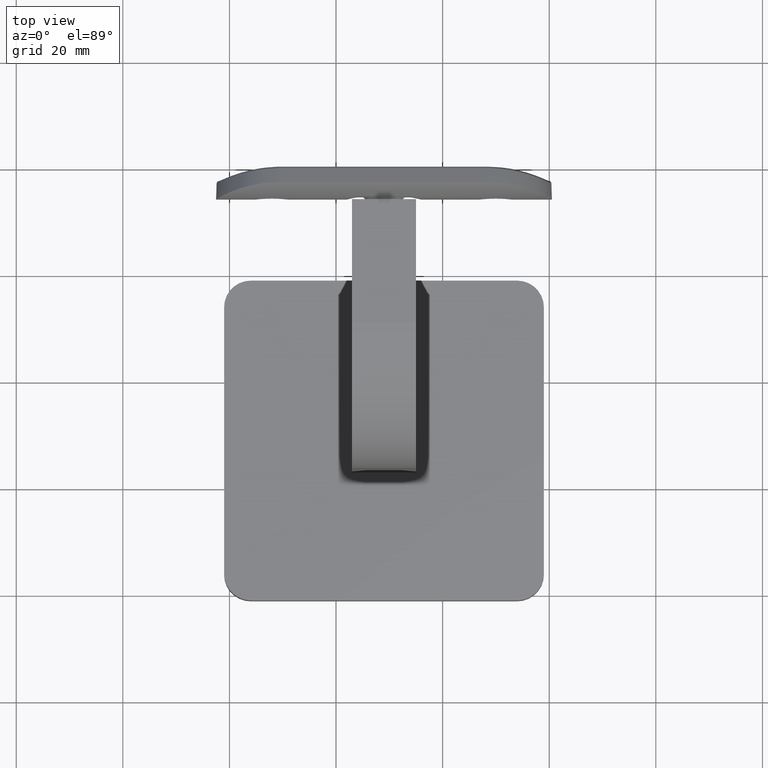
[diagram: clean part render]
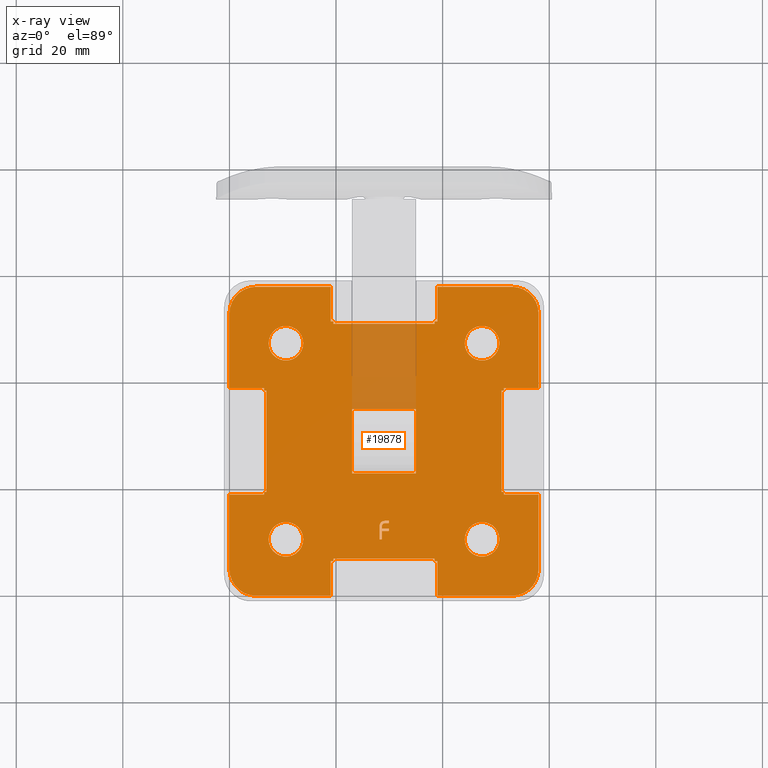
[diagram: x-ray — body ghosted, one internal face saturated and labeled with its STEP entity id]
A machine part, top view, then the same camera in x-ray: the body is ghosted and one INTERNAL B-rep face — a face not visible from any outside direction — is saturated and labeled: STEP entity #19878.
In plain terms, the highlighted planar face has unit normal (0, 0, -1).
Its self-contained STEP definition (entity closure, byte-faithful):
#5 = ORIENTED_EDGE ( 'NONE', *, *, #4722, .F. ) ;
#47 = DIRECTION ( 'NONE',  ( 1.000000000000000000, -0.000000000000000000, -0.000000000000000000 ) ) ;
#175 = VERTEX_POINT ( 'NONE', #19635 ) ;
#183 = CARTESIAN_POINT ( 'NONE',  ( 28.79063944848217460, 13.47055352233458336, 2.000000000000000888 ) ) ;
#207 = CARTESIAN_POINT ( 'NONE',  ( 50.65000000000001279, 10.59999999999999964, 2.000000000000000000 ) ) ;
#261 = VERTEX_POINT ( 'NONE', #18134 ) ;
#274 = DIRECTION ( 'NONE',  ( 0.000000000000000000, 0.000000000000000000, 1.000000000000000000 ) ) ;
#301 = LINE ( 'NONE', #7086, #7984 ) ;
#355 = CARTESIAN_POINT ( 'NONE',  ( 29.89802631578947967, 14.09999999999999964, 2.000000000000000000 ) ) ;
#371 = AXIS2_PLACEMENT_3D ( 'NONE', #10263, #11920, #18279 ) ;
#479 = ORIENTED_EDGE ( 'NONE', *, *, #1676, .T. ) ;
#508 = ORIENTED_EDGE ( 'NONE', *, *, #16146, .F. ) ;
#532 = DIRECTION ( 'NONE',  ( 0.000000000000000000, -1.000000000000000000, 0.000000000000000000 ) ) ;
#590 = VERTEX_POINT ( 'NONE', #355 ) ;
#650 = LINE ( 'NONE', #912, #7581 ) ;
#654 = CARTESIAN_POINT ( 'NONE',  ( 19.50000000000000355, 6.500000000000000000, 2.000000000000001332 ) ) ;
#748 = CARTESIAN_POINT ( 'NONE',  ( 6.500000000000000888, 19.50000000000000355, 1.999999999999999112 ) ) ;
#774 = VERTEX_POINT ( 'NONE', #1324 ) ;
#775 = VECTOR ( 'NONE', #19672, 1000.000000000000000 ) ;
#814 = VERTEX_POINT ( 'NONE', #20159 ) ;
#875 = ORIENTED_EDGE ( 'NONE', *, *, #1966, .T. ) ;
#912 = CARTESIAN_POINT ( 'NONE',  ( 38.50000000000000000, 0.000000000000000000, 2.000000000000000000 ) ) ;
#928 = ORIENTED_EDGE ( 'NONE', *, *, #15316, .T. ) ;
#947 = CARTESIAN_POINT ( 'NONE',  ( 5.000000000000000000, 53.00000000000000711, 2.000000000000000000 ) ) ;
#957 = VERTEX_POINT ( 'NONE', #7891 ) ;
#970 = VERTEX_POINT ( 'NONE', #14328 ) ;
#998 = VECTOR ( 'NONE', #8318, 1000.000000000000000 ) ;
#1090 = LINE ( 'NONE', #10093, #12254 ) ;
#1099 = CARTESIAN_POINT ( 'NONE',  ( 52.99999999999999289, 58.00000000000000000, 2.000000000000000000 ) ) ;
#1135 = AXIS2_PLACEMENT_3D ( 'NONE', #18356, #13929, #20318 ) ;
#1156 = DIRECTION ( 'NONE',  ( -0.000000000000000000, -0.000000000000000000, 1.000000000000000000 ) ) ;
#1194 = LINE ( 'NONE', #12554, #10148 ) ;
#1196 = EDGE_CURVE ( 'NONE', #15207, #16091, #15073, .T. ) ;
#1324 = CARTESIAN_POINT ( 'NONE',  ( 58.00000000000000000, 38.99999999999999289, 2.000000000000000000 ) ) ;
#1462 = VECTOR ( 'NONE', #9891, 1000.000000000000000 ) ;
#1474 = EDGE_CURVE ( 'NONE', #18391, #8301, #14073, .T. ) ;
#1676 = EDGE_CURVE ( 'NONE', #16091, #19380, #1194, .T. ) ;
#1678 = ORIENTED_EDGE ( 'NONE', *, *, #17885, .T. ) ;
#1717 = CARTESIAN_POINT ( 'NONE',  ( 28.15078194873631290, 13.06152638979121328, 2.000000000000000000 ) ) ;
#1780 = CARTESIAN_POINT ( 'NONE',  ( 29.24484309778020474, 14.09787237445320507, 1.999999999999999112 ) ) ;
#1784 = VECTOR ( 'NONE', #17467, 1000.000000000000000 ) ;
#1929 = ORIENTED_EDGE ( 'NONE', *, *, #15321, .T. ) ;
#1966 = EDGE_CURVE ( 'NONE', #19344, #970, #4680, .T. ) ;
#1973 = CARTESIAN_POINT ( 'NONE',  ( 28.60855263157895223, 12.98466282894736779, 2.000000000000000000 ) ) ;
#1995 = ORIENTED_EDGE ( 'NONE', *, *, #20421, .T. ) ;
#2030 = EDGE_CURVE ( 'NONE', #5855, #19670, #8363, .T. ) ;
#2034 = CARTESIAN_POINT ( 'NONE',  ( 18.99999999999999289, 6.500000000000001776, 2.000000000000000000 ) ) ;
#2059 = CARTESIAN_POINT ( 'NONE',  ( 58.00000000000000000, 18.99999999999999645, 2.000000000000000000 ) ) ;
#2091 = CARTESIAN_POINT ( 'NONE',  ( 19.50000000000000355, 51.05661067471412196, 2.000000000000000000 ) ) ;
#2149 = LINE ( 'NONE', #18426, #16530 ) ;
#2158 = VECTOR ( 'NONE', #13316, 1000.000000000000000 ) ;
#2165 = CARTESIAN_POINT ( 'NONE',  ( 23.00000000000000355, 35.00000000000000000, 2.000000000000000000 ) ) ;
#2253 = CARTESIAN_POINT ( 'NONE',  ( 0.000000000000000000, 0.000000000000000000, 2.000000000000000000 ) ) ;
#2332 = CARTESIAN_POINT ( 'NONE',  ( 38.99999999999999289, 6.500000000000001776, 2.000000000000000000 ) ) ;
#2349 = EDGE_CURVE ( 'NONE', #19298, #12216, #18619, .T. ) ;
#2403 = EDGE_CURVE ( 'NONE', #16746, #3082, #19833, .T. ) ;
#2489 = B_SPLINE_CURVE_WITH_KNOTS ( 'NONE', 3,
 ( #3215, #4825, #4960, #16033, #14594, #6568, #17546, #9707, #16234, #183, #17748, #11309, #19259, #17824, #3552, #16099, #5168, #12886, #1973 ),
 .UNSPECIFIED., .F., .F.,
 ( 4, 1, 1, 1, 1, 1, 1, 1, 1, 1, 1, 1, 1, 1, 1, 1, 4 ),
 ( 0.000000000000000000, 0.07497969033293962193, 0.1456827640609383301, 0.2131173456829272284, 0.2772246530357000416, 0.3383864738233569591, 0.3974751375338513304, 0.4554528950615586158, 0.5124308963239337933, 0.5691428746506236314, 0.6250144016280027026, 0.6821703235346431304, 0.7401704332154128707, 0.8002453054517959519, 0.8634156982335742248, 0.9296184795461578387, 1.000000000000000000 ),
 .UNSPECIFIED. ) ;
#2561 = EDGE_CURVE ( 'NONE', #18911, #8172, #19586, .T. ) ;
#2585 = CARTESIAN_POINT ( 'NONE',  ( 6.500000000000003553, 18.99999999999999645, 2.000000000000000000 ) ) ;
#2679 = VECTOR ( 'NONE', #19124, 1000.000000000000000 ) ;
#2692 = ORIENTED_EDGE ( 'NONE', *, *, #2030, .T. ) ;
#2869 = EDGE_CURVE ( 'NONE', #10868, #14268, #14178, .T. ) ;
#2903 = CARTESIAN_POINT ( 'NONE',  ( 0.000000000000000000, 51.05661067471412196, 2.000000000000000000 ) ) ;
#3082 = VERTEX_POINT ( 'NONE', #19216 ) ;
#3115 = CARTESIAN_POINT ( 'NONE',  ( 58.00000000000000000, 0.000000000000000000, 2.000000000000000000 ) ) ;
#3123 = VERTEX_POINT ( 'NONE', #2059 ) ;
#3186 = VECTOR ( 'NONE', #13646, 1000.000000000000000 ) ;
#3215 = CARTESIAN_POINT ( 'NONE',  ( 29.31229440789473983, 13.63947368421052531, 2.000000000000000000 ) ) ;
#3216 = DIRECTION ( 'NONE',  ( 0.000000000000000000, -1.000000000000000000, 0.000000000000000000 ) ) ;
#3220 = CARTESIAN_POINT ( 'NONE',  ( 29.10194978355290729, 14.08411651731833736, 2.000000000000000888 ) ) ;
#3260 = VERTEX_POINT ( 'NONE', #18106 ) ;
#3261 = CARTESIAN_POINT ( 'NONE',  ( 28.60855263157895223, 12.98466282894736779, 2.000000000000000000 ) ) ;
#3282 = VERTEX_POINT ( 'NONE', #748 ) ;
#3319 = VERTEX_POINT ( 'NONE', #3922 ) ;
#3356 = CIRCLE ( 'NONE', #1135, 5.000000000000000000 ) ;
#3475 = ORIENTED_EDGE ( 'NONE', *, *, #8534, .F. ) ;
#3491 = FACE_BOUND ( 'NONE', #4265, .T. ) ;
#3508 = CARTESIAN_POINT ( 'NONE',  ( 51.05661067471412906, 0.000000000000000000, 2.000000000000000000 ) ) ;
#3528 = LINE ( 'NONE', #3508, #19857 ) ;
#3531 = ORIENTED_EDGE ( 'NONE', *, *, #16045, .T. ) ;
#3544 = VECTOR ( 'NONE', #6904, 1000.000000000000000 ) ;
#3552 = CARTESIAN_POINT ( 'NONE',  ( 28.63295541797874222, 13.20048705687768908, 1.999999999999999556 ) ) ;
#3699 = ORIENTED_EDGE ( 'NONE', *, *, #13994, .T. ) ;
#3724 = VECTOR ( 'NONE', #17934, 1000.000000000000000 ) ;
#3743 = DIRECTION ( 'NONE',  ( -1.000000000000000000, -0.000000000000000000, -0.000000000000000000 ) ) ;
#3766 = EDGE_CURVE ( 'NONE', #14268, #8037, #17409, .T. ) ;
#3840 = EDGE_CURVE ( 'NONE', #15820, #5855, #4780, .T. ) ;
#3922 = CARTESIAN_POINT ( 'NONE',  ( 4.999999999999998224, 58.00000000000000000, 2.000000000000000000 ) ) ;
#3949 = CARTESIAN_POINT ( 'NONE',  ( 38.99999999999999289, 6.500000000000001776, 2.000000000000000000 ) ) ;
#3999 = EDGE_CURVE ( 'NONE', #10909, #17565, #3528, .T. ) ;
#4006 = DIRECTION ( 'NONE',  ( 0.000000000000000000, 1.000000000000000000, 0.000000000000000000 ) ) ;
#4080 = LINE ( 'NONE', #8267, #13300 ) ;
#4097 = CARTESIAN_POINT ( 'NONE',  ( -7.347880794884118750E-16, 38.99999999999999289, 2.000000000000000000 ) ) ;
#4121 = CARTESIAN_POINT ( 'NONE',  ( 53.00000000000000711, 5.000000000000000000, 2.000000000000000000 ) ) ;
#4216 = EDGE_CURVE ( 'NONE', #10634, #3282, #12104, .T. ) ;
#4265 = EDGE_LOOP ( 'NONE', ( #13198 ) ) ;
#4272 = EDGE_CURVE ( 'NONE', #15524, #10577, #11087, .T. ) ;
#4336 = EDGE_CURVE ( 'NONE', #8685, #8685, #5239, .T. ) ;
#4462 = VECTOR ( 'NONE', #11064, 1000.000000000000000 ) ;
#4465 = ORIENTED_EDGE ( 'NONE', *, *, #11005, .T. ) ;
#4531 = VECTOR ( 'NONE', #5784, 1000.000000000000000 ) ;
#4537 = ORIENTED_EDGE ( 'NONE', *, *, #17969, .F. ) ;
#4678 = ORIENTED_EDGE ( 'NONE', *, *, #2869, .F. ) ;
#4680 = LINE ( 'NONE', #20469, #11633 ) ;
#4722 = EDGE_CURVE ( 'NONE', #3082, #19380, #9789, .T. ) ;
#4780 = CIRCLE ( 'NONE', #17719, 4.999999999999997335 ) ;
#4820 = CARTESIAN_POINT ( 'NONE',  ( 18.99999999999999289, -1.592040838891558701E-15, 2.000000000000000000 ) ) ;
#4825 = CARTESIAN_POINT ( 'NONE',  ( 29.28492825178181036, 13.63891129347982023, 2.000000000000000444 ) ) ;
#4897 = CARTESIAN_POINT ( 'NONE',  ( 28.84617274643244045, 14.02993089130213278, 2.000000000000001332 ) ) ;
#4934 = CARTESIAN_POINT ( 'NONE',  ( 51.50000000000000711, 19.49999999999999645, 2.000000000000000000 ) ) ;
#4960 = CARTESIAN_POINT ( 'NONE',  ( 29.23175682300485434, 13.63781858909856837, 2.000000000000000000 ) ) ;
#4979 = EDGE_CURVE ( 'NONE', #20050, #20050, #17412, .T. ) ;
#4980 = DIRECTION ( 'NONE',  ( 0.000000000000000000, 1.000000000000000000, 0.000000000000000000 ) ) ;
#4999 = FACE_BOUND ( 'NONE', #5682, .T. ) ;
#5014 = VERTEX_POINT ( 'NONE', #10796 ) ;
#5073 = LINE ( 'NONE', #11763, #16973 ) ;
#5139 = EDGE_LOOP ( 'NONE', ( #12439 ) ) ;
#5168 = CARTESIAN_POINT ( 'NONE',  ( 28.61005179374838647, 13.06021434224681599, 1.999999999999999556 ) ) ;
#5227 = ORIENTED_EDGE ( 'NONE', *, *, #15200, .T. ) ;
#5239 = CIRCLE ( 'NONE', #10229, 3.249999999999999556 ) ;
#5241 = VERTEX_POINT ( 'NONE', #8783 ) ;
#5475 = EDGE_CURVE ( 'NONE', #17565, #3260, #1090, .T. ) ;
#5501 = FACE_BOUND ( 'NONE', #9618, .T. ) ;
#5509 = VECTOR ( 'NONE', #7808, 1000.000000000000000 ) ;
#5539 = VECTOR ( 'NONE', #11240, 1000.000000000000000 ) ;
#5555 = DIRECTION ( 'NONE',  ( 1.000000000000000000, 0.000000000000000000, 0.000000000000000000 ) ) ;
#5557 = ORIENTED_EDGE ( 'NONE', *, *, #12999, .F. ) ;
#5577 = VECTOR ( 'NONE', #9505, 1000.000000000000000 ) ;
#5595 = ORIENTED_EDGE ( 'NONE', *, *, #14783, .T. ) ;
#5597 = LINE ( 'NONE', #10482, #8810 ) ;
#5602 = CARTESIAN_POINT ( 'NONE',  ( 10.60000000000000497, 10.59999999999999964, 2.000000000000000000 ) ) ;
#5682 = EDGE_LOOP ( 'NONE', ( #6183, #4465, #5227, #11664, #18866, #5595, #10698, #1678, #17580, #3699, #6062, #13155 ) ) ;
#5731 = ORIENTED_EDGE ( 'NONE', *, *, #8137, .F. ) ;
#5739 = FACE_BOUND ( 'NONE', #13637, .T. ) ;
#5747 = EDGE_CURVE ( 'NONE', #8946, #8946, #18392, .T. ) ;
#5784 = DIRECTION ( 'NONE',  ( -1.000000000000000000, -0.000000000000000000, -0.000000000000000000 ) ) ;
#5804 = ORIENTED_EDGE ( 'NONE', *, *, #18003, .F. ) ;
#5855 = VERTEX_POINT ( 'NONE', #1099 ) ;
#5870 = ORIENTED_EDGE ( 'NONE', *, *, #15146, .T. ) ;
#5874 = VECTOR ( 'NONE', #532, 1000.000000000000000 ) ;
#5962 = VECTOR ( 'NONE', #8653, 1000.000000000000000 ) ;
#5996 = CARTESIAN_POINT ( 'NONE',  ( 38.50000000000000000, 6.943389325285883373, 2.000000000000000000 ) ) ;
#6028 = CARTESIAN_POINT ( 'NONE',  ( 29.89802631578947967, 13.63947368421052531, 2.000000000000000000 ) ) ;
#6062 = ORIENTED_EDGE ( 'NONE', *, *, #8670, .T. ) ;
#6095 = CARTESIAN_POINT ( 'NONE',  ( 0.000000000000000000, 38.99999999999997868, 2.000000000000000000 ) ) ;
#6109 = CARTESIAN_POINT ( 'NONE',  ( 53.00000000000000711, 53.00000000000000711, 2.000000000000000000 ) ) ;
#6130 = VERTEX_POINT ( 'NONE', #2034 ) ;
#6170 = ORIENTED_EDGE ( 'NONE', *, *, #9818, .F. ) ;
#6183 = ORIENTED_EDGE ( 'NONE', *, *, #14269, .T. ) ;
#6210 = CARTESIAN_POINT ( 'NONE',  ( 0.000000000000000000, 0.000000000000000000, 2.000000000000000000 ) ) ;
#6244 = DIRECTION ( 'NONE',  ( -1.000000000000000000, 0.000000000000000000, 0.000000000000000000 ) ) ;
#6292 = CARTESIAN_POINT ( 'NONE',  ( 51.50000000000000711, 18.99999999999999645, 2.000000000000000000 ) ) ;
#6294 = ORIENTED_EDGE ( 'NONE', *, *, #4216, .F. ) ;
#6332 = CARTESIAN_POINT ( 'NONE',  ( 29.89802631578947967, 12.16578947368421026, 2.000000000000000000 ) ) ;
#6393 = DIRECTION ( 'NONE',  ( 0.000000000000000000, 1.000000000000000000, 0.000000000000000000 ) ) ;
#6433 = CARTESIAN_POINT ( 'NONE',  ( 28.26574578435733898, 13.54651344365790955, 1.999999999999999112 ) ) ;
#6435 = LINE ( 'NONE', #4820, #2679 ) ;
#6466 = VERTEX_POINT ( 'NONE', #3261 ) ;
#6472 = LINE ( 'NONE', #14965, #5962 ) ;
#6504 = CARTESIAN_POINT ( 'NONE',  ( 29.39432565789473983, 14.09999999999999964, 2.000000000000000000 ) ) ;
#6506 = CARTESIAN_POINT ( 'NONE',  ( 29.39432565789473983, 14.09999999999999964, 2.000000000000000000 ) ) ;
#6568 = CARTESIAN_POINT ( 'NONE',  ( 29.01368836241204363, 13.59825244727592874, 2.000000000000000000 ) ) ;
#6581 = ORIENTED_EDGE ( 'NONE', *, *, #3766, .F. ) ;
#6625 = EDGE_CURVE ( 'NONE', #774, #10514, #11745, .T. ) ;
#6732 = LINE ( 'NONE', #19156, #14663 ) ;
#6756 = DIRECTION ( 'NONE',  ( 0.000000000000000000, -1.000000000000000000, 0.000000000000000000 ) ) ;
#6904 = DIRECTION ( 'NONE',  ( -0.000000000000000000, -1.000000000000000000, -0.000000000000000000 ) ) ;
#7000 = VECTOR ( 'NONE', #6756, 1000.000000000000000 ) ;
#7086 = CARTESIAN_POINT ( 'NONE',  ( 18.99999999999999289, 6.500000000000001776, 2.000000000000000000 ) ) ;
#7133 = CARTESIAN_POINT ( 'NONE',  ( 38.99999999999999289, 0.000000000000000000, 2.000000000000000000 ) ) ;
#7173 = VERTEX_POINT ( 'NONE', #16373 ) ;
#7192 = VERTEX_POINT ( 'NONE', #13017 ) ;
#7230 = CARTESIAN_POINT ( 'NONE',  ( 23.00000000000000355, 23.00000000000000355, 2.000000000000000000 ) ) ;
#7244 = LINE ( 'NONE', #7230, #11006 ) ;
#7292 = CARTESIAN_POINT ( 'NONE',  ( 6.500000000000003553, 18.99999999999999645, 2.000000000000000000 ) ) ;
#7335 = VECTOR ( 'NONE', #12275, 1000.000000000000000 ) ;
#7351 = CARTESIAN_POINT ( 'NONE',  ( 58.00000000000000000, 4.999999999999998224, 2.000000000000000000 ) ) ;
#7448 = CARTESIAN_POINT ( 'NONE',  ( 18.99999999999999289, 51.50000000000000000, 2.000000000000000000 ) ) ;
#7454 = LINE ( 'NONE', #20388, #15149 ) ;
#7497 = EDGE_CURVE ( 'NONE', #590, #13879, #15406, .T. ) ;
#7581 = VECTOR ( 'NONE', #8879, 1000.000000000000000 ) ;
#7758 = AXIS2_PLACEMENT_3D ( 'NONE', #947, #11929, #16591 ) ;
#7808 = DIRECTION ( 'NONE',  ( 0.000000000000000000, -1.000000000000000000, 0.000000000000000000 ) ) ;
#7809 = VECTOR ( 'NONE', #6393, 1000.000000000000000 ) ;
#7890 = CARTESIAN_POINT ( 'NONE',  ( 29.34344450698802476, 14.09927579487241545, 2.000000000000000000 ) ) ;
#7891 = CARTESIAN_POINT ( 'NONE',  ( 28.60855263157895223, 10.59999999999999964, 2.000000000000000000 ) ) ;
#7909 = DIRECTION ( 'NONE',  ( 0.000000000000000000, 0.000000000000000000, 1.000000000000000000 ) ) ;
#7957 = CARTESIAN_POINT ( 'NONE',  ( 0.000000000000000000, 38.50000000000000000, 2.000000000000000000 ) ) ;
#7984 = VECTOR ( 'NONE', #3743, 1000.000000000000000 ) ;
#7998 = DIRECTION ( 'NONE',  ( -1.000000000000000000, 0.000000000000000000, 0.000000000000000000 ) ) ;
#8022 = EDGE_CURVE ( 'NONE', #19076, #5241, #7454, .T. ) ;
#8037 = VERTEX_POINT ( 'NONE', #6095 ) ;
#8062 = CARTESIAN_POINT ( 'NONE',  ( 29.89802631578947967, 14.09999999999999964, 2.000000000000000000 ) ) ;
#8095 = CARTESIAN_POINT ( 'NONE',  ( 28.31890405052963189, 13.64399264801621392, 2.000000000000000444 ) ) ;
#8129 = DIRECTION ( 'NONE',  ( 0.000000000000000000, -1.000000000000000000, 0.000000000000000000 ) ) ;
#8137 = EDGE_CURVE ( 'NONE', #5241, #17763, #6732, .T. ) ;
#8160 = LINE ( 'NONE', #12733, #15824 ) ;
#8172 = VERTEX_POINT ( 'NONE', #19408 ) ;
#8190 = ORIENTED_EDGE ( 'NONE', *, *, #6625, .F. ) ;
#8267 = CARTESIAN_POINT ( 'NONE',  ( 28.60855263157895223, 10.59999999999999964, 2.000000000000000000 ) ) ;
#8276 = CARTESIAN_POINT ( 'NONE',  ( 28.14802631578947612, 10.59999999999999964, 2.000000000000000000 ) ) ;
#8301 = VERTEX_POINT ( 'NONE', #3949 ) ;
#8318 = DIRECTION ( 'NONE',  ( -1.000000000000000000, 0.000000000000000000, 0.000000000000000000 ) ) ;
#8339 = AXIS2_PLACEMENT_3D ( 'NONE', #16191, #274, #14624 ) ;
#8363 = LINE ( 'NONE', #14023, #10699 ) ;
#8468 = ORIENTED_EDGE ( 'NONE', *, *, #2349, .T. ) ;
#8534 = EDGE_CURVE ( 'NONE', #10514, #3260, #14402, .T. ) ;
#8568 = LINE ( 'NONE', #16776, #16491 ) ;
#8641 = LINE ( 'NONE', #12006, #3186 ) ;
#8653 = DIRECTION ( 'NONE',  ( 1.000000000000000000, 0.000000000000000000, 0.000000000000000000 ) ) ;
#8654 = VERTEX_POINT ( 'NONE', #17989 ) ;
#8670 = EDGE_CURVE ( 'NONE', #16345, #8654, #17838, .T. ) ;
#8685 = VERTEX_POINT ( 'NONE', #11196 ) ;
#8783 = CARTESIAN_POINT ( 'NONE',  ( 35.00000000000000000, 35.00000000000000000, 2.000000000000000000 ) ) ;
#8789 = DIRECTION ( 'NONE',  ( -1.000000000000000000, 0.000000000000000000, 0.000000000000000000 ) ) ;
#8810 = VECTOR ( 'NONE', #4006, 1000.000000000000000 ) ;
#8814 = CARTESIAN_POINT ( 'NONE',  ( 19.50000000000000355, 51.50000000000000000, 2.000000000000000000 ) ) ;
#8827 = VECTOR ( 'NONE', #3216, 1000.000000000000000 ) ;
#8828 = EDGE_CURVE ( 'NONE', #18391, #15524, #6472, .T. ) ;
#8880 = CARTESIAN_POINT ( 'NONE',  ( 29.39432565789473983, 14.09999999999999964, 2.000000000000000000 ) ) ;
#8879 = DIRECTION ( 'NONE',  ( 0.000000000000000000, -1.000000000000000000, 0.000000000000000000 ) ) ;
#8946 = VERTEX_POINT ( 'NONE', #14211 ) ;
#8953 = CARTESIAN_POINT ( 'NONE',  ( 29.89802631578947967, 12.62631578947368283, 2.000000000000000000 ) ) ;
#8979 = DIRECTION ( 'NONE',  ( -1.000000000000000000, -0.000000000000000000, -0.000000000000000000 ) ) ;
#9114 = VECTOR ( 'NONE', #19815, 1000.000000000000000 ) ;
#9265 = ORIENTED_EDGE ( 'NONE', *, *, #19914, .F. ) ;
#9348 = LINE ( 'NONE', #7957, #17230 ) ;
#9505 = DIRECTION ( 'NONE',  ( 1.000000000000000000, 0.000000000000000000, 0.000000000000000000 ) ) ;
#9511 = VECTOR ( 'NONE', #8129, 1000.000000000000000 ) ;
#9572 = CARTESIAN_POINT ( 'NONE',  ( 18.99999999999999289, 57.99999999999999289, 2.000000000000000000 ) ) ;
#9586 = CARTESIAN_POINT ( 'NONE',  ( 28.14802631578947612, 12.91990131578947398, 2.000000000000000000 ) ) ;
#9600 = CARTESIAN_POINT ( 'NONE',  ( 38.99999999999999289, 51.50000000000000000, 2.000000000000000000 ) ) ;
#9618 = EDGE_LOOP ( 'NONE', ( #17471 ) ) ;
#9707 = CARTESIAN_POINT ( 'NONE',  ( 28.89263492018298862, 13.54483270564909425, 2.000000000000000000 ) ) ;
#9761 = VERTEX_POINT ( 'NONE', #6292 ) ;
#9789 = LINE ( 'NONE', #19257, #5539 ) ;
#9818 = EDGE_CURVE ( 'NONE', #6130, #12019, #6435, .T. ) ;
#9891 = DIRECTION ( 'NONE',  ( 0.000000000000000000, 1.000000000000000000, 0.000000000000000000 ) ) ;
#9992 = VECTOR ( 'NONE', #11263, 1000.000000000000000 ) ;
#10008 = CARTESIAN_POINT ( 'NONE',  ( 13.85000000000000320, 47.39999999999999858, 2.000000000000000000 ) ) ;
#10015 = CARTESIAN_POINT ( 'NONE',  ( 29.89802631578947967, 12.16578947368421026, 2.000000000000000000 ) ) ;
#10093 = CARTESIAN_POINT ( 'NONE',  ( 0.000000000000000000, 38.49999999999999289, 2.000000000000000000 ) ) ;
#10108 = AXIS2_PLACEMENT_3D ( 'NONE', #10730, #15331, #12112 ) ;
#10148 = VECTOR ( 'NONE', #18594, 1000.000000000000000 ) ;
#10166 = EDGE_CURVE ( 'NONE', #14368, #10909, #8641, .T. ) ;
#10229 = AXIS2_PLACEMENT_3D ( 'NONE', #5602, #13578, #19613 ) ;
#10263 = CARTESIAN_POINT ( 'NONE',  ( 0.000000000000000000, 0.000000000000000000, 2.000000000000000000 ) ) ;
#10363 = ORIENTED_EDGE ( 'NONE', *, *, #2403, .F. ) ;
#10452 = DIRECTION ( 'NONE',  ( -0.000000000000000000, -1.000000000000000000, -0.000000000000000000 ) ) ;
#10482 = CARTESIAN_POINT ( 'NONE',  ( 58.00000000000000000, 0.000000000000000000, 2.000000000000000000 ) ) ;
#10514 = VERTEX_POINT ( 'NONE', #13332 ) ;
#10577 = VERTEX_POINT ( 'NONE', #7351 ) ;
#10597 = DIRECTION ( 'NONE',  ( 1.000000000000000000, 0.000000000000000000, 0.000000000000000000 ) ) ;
#10626 = ORIENTED_EDGE ( 'NONE', *, *, #1196, .T. ) ;
#10628 = VERTEX_POINT ( 'NONE', #8880 ) ;
#10634 = VERTEX_POINT ( 'NONE', #7292 ) ;
#10698 = ORIENTED_EDGE ( 'NONE', *, *, #12834, .T. ) ;
#10699 = VECTOR ( 'NONE', #20337, 1000.000000000000000 ) ;
#10730 = CARTESIAN_POINT ( 'NONE',  ( 47.40000000000001279, 10.59999999999999964, 2.000000000000000000 ) ) ;
#10796 = CARTESIAN_POINT ( 'NONE',  ( 6.943389325285875380, 38.50000000000000000, 2.000000000000000000 ) ) ;
#10805 = EDGE_CURVE ( 'NONE', #3319, #261, #14099, .T. ) ;
#10807 = CARTESIAN_POINT ( 'NONE',  ( 51.05661067471412906, 38.49999999999999289, 2.000000000000000000 ) ) ;
#10837 = EDGE_CURVE ( 'NONE', #19298, #10634, #8160, .T. ) ;
#10868 = VERTEX_POINT ( 'NONE', #17270 ) ;
#10909 = VERTEX_POINT ( 'NONE', #18856 ) ;
#10957 = VECTOR ( 'NONE', #14449, 1000.000000000000000 ) ;
#11005 = EDGE_CURVE ( 'NONE', #12954, #17063, #13618, .T. ) ;
#11006 = VECTOR ( 'NONE', #18413, 1000.000000000000000 ) ;
#11064 = DIRECTION ( 'NONE',  ( -0.000000000000000000, -1.000000000000000000, -0.000000000000000000 ) ) ;
#11087 = CIRCLE ( 'NONE', #12219, 4.999999999999997335 ) ;
#11119 = CARTESIAN_POINT ( 'NONE',  ( 6.500000000000003553, 18.99999999999999645, 2.000000000000000000 ) ) ;
#11121 = VERTEX_POINT ( 'NONE', #9600 ) ;
#11151 = CARTESIAN_POINT ( 'NONE',  ( 0.000000000000000000, 6.943389325285883373, 2.000000000000000000 ) ) ;
#11155 = ORIENTED_EDGE ( 'NONE', *, *, #3999, .T. ) ;
#11196 = CARTESIAN_POINT ( 'NONE',  ( 13.85000000000000497, 10.59999999999999964, 2.000000000000000000 ) ) ;
#11240 = DIRECTION ( 'NONE',  ( 1.000000000000000000, 0.000000000000000000, 0.000000000000000000 ) ) ;
#11263 = DIRECTION ( 'NONE',  ( -4.336808689942018352E-17, 1.000000000000000000, 0.000000000000000000 ) ) ;
#11309 = CARTESIAN_POINT ( 'NONE',  ( 28.71032012249779086, 13.37630287784894634, 2.000000000000000444 ) ) ;
#11315 = CARTESIAN_POINT ( 'NONE',  ( 28.14896517474936033, 12.96815373990988896, 1.999999999999999556 ) ) ;
#11321 = ORIENTED_EDGE ( 'NONE', *, *, #17253, .F. ) ;
#11461 = LINE ( 'NONE', #16555, #3724 ) ;
#11571 = CARTESIAN_POINT ( 'NONE',  ( 38.50000000000000000, 0.000000000000000000, 2.000000000000000000 ) ) ;
#11587 = CARTESIAN_POINT ( 'NONE',  ( 38.99999999999999289, 58.00000000000000000, 2.000000000000000000 ) ) ;
#11593 = LINE ( 'NONE', #15291, #7335 ) ;
#11633 = VECTOR ( 'NONE', #15818, 1000.000000000000000 ) ;
#11664 = ORIENTED_EDGE ( 'NONE', *, *, #18724, .T. ) ;
#11694 = DIRECTION ( 'NONE',  ( 1.000000000000000000, 0.000000000000000000, 0.000000000000000000 ) ) ;
#11712 = CARTESIAN_POINT ( 'NONE',  ( 58.00000000000000000, 52.99999999999999289, 2.000000000000000000 ) ) ;
#11745 = LINE ( 'NONE', #16355, #16651 ) ;
#11763 = CARTESIAN_POINT ( 'NONE',  ( 51.50000000000000711, 18.99999999999999645, 2.000000000000000000 ) ) ;
#11780 = EDGE_CURVE ( 'NONE', #16746, #3319, #2149, .T. ) ;
#11850 = LINE ( 'NONE', #17628, #13812 ) ;
#11920 = DIRECTION ( 'NONE',  ( 0.000000000000000000, 0.000000000000000000, -1.000000000000000000 ) ) ;
#11928 = DIRECTION ( 'NONE',  ( 1.000000000000000000, 0.000000000000000000, 0.000000000000000000 ) ) ;
#11929 = DIRECTION ( 'NONE',  ( -0.000000000000000000, -0.000000000000000000, 1.000000000000000000 ) ) ;
#12006 = CARTESIAN_POINT ( 'NONE',  ( 0.000000000000000000, 19.49999999999999645, 2.000000000000000000 ) ) ;
#12019 = VERTEX_POINT ( 'NONE', #17521 ) ;
#12049 = LINE ( 'NONE', #3115, #7809 ) ;
#12104 = LINE ( 'NONE', #2585, #9114 ) ;
#12112 = DIRECTION ( 'NONE',  ( 1.000000000000000000, 0.000000000000000000, 0.000000000000000000 ) ) ;
#12119 = CARTESIAN_POINT ( 'NONE',  ( 28.14802631578947612, 12.91990131578947398, 2.000000000000000000 ) ) ;
#12191 = LINE ( 'NONE', #16025, #10957 ) ;
#12216 = VERTEX_POINT ( 'NONE', #19700 ) ;
#12219 = AXIS2_PLACEMENT_3D ( 'NONE', #4121, #1156, #17142 ) ;
#12254 = VECTOR ( 'NONE', #5555, 1000.000000000000000 ) ;
#12275 = DIRECTION ( 'NONE',  ( -1.000000000000000000, -0.000000000000000000, -0.000000000000000000 ) ) ;
#12420 = CARTESIAN_POINT ( 'NONE',  ( 18.99999999999999289, 57.99999999999999289, 2.000000000000000000 ) ) ;
#12439 = ORIENTED_EDGE ( 'NONE', *, *, #4979, .F. ) ;
#12452 = ORIENTED_EDGE ( 'NONE', *, *, #5475, .T. ) ;
#12461 = VECTOR ( 'NONE', #11928, 1000.000000000000000 ) ;
#12537 = EDGE_CURVE ( 'NONE', #11121, #19670, #11850, .T. ) ;
#12554 = CARTESIAN_POINT ( 'NONE',  ( 19.50000000000000355, 0.000000000000000000, 2.000000000000000000 ) ) ;
#12609 = LINE ( 'NONE', #19646, #13196 ) ;
#12627 = CARTESIAN_POINT ( 'NONE',  ( 28.18854269449116146, 13.32307967089299972, 1.999999999999999556 ) ) ;
#12631 = EDGE_LOOP ( 'NONE', ( #5731, #13869, #5804, #5557 ) ) ;
#12635 = ORIENTED_EDGE ( 'NONE', *, *, #10805, .T. ) ;
#12651 = CARTESIAN_POINT ( 'NONE',  ( 10.60000000000000142, 47.39999999999999858, 2.000000000000000000 ) ) ;
#12699 = CARTESIAN_POINT ( 'NONE',  ( 28.73319595074136856, 13.98900918171443486, 1.999999999999999112 ) ) ;
#12718 = DIRECTION ( 'NONE',  ( 1.000000000000000000, 0.000000000000000000, 0.000000000000000000 ) ) ;
#12725 = VECTOR ( 'NONE', #8789, 1000.000000000000000 ) ;
#12733 = CARTESIAN_POINT ( 'NONE',  ( 6.500000000000003553, 18.99999999999999645, 2.000000000000000000 ) ) ;
#12821 = ORIENTED_EDGE ( 'NONE', *, *, #18366, .T. ) ;
#12826 = CARTESIAN_POINT ( 'NONE',  ( 28.22244236204982926, 13.43949382776242274, 2.000000000000000444 ) ) ;
#12834 = EDGE_CURVE ( 'NONE', #814, #6466, #2489, .T. ) ;
#12877 = CARTESIAN_POINT ( 'NONE',  ( 35.00000000000000000, 23.00000000000000355, 2.000000000000000000 ) ) ;
#12886 = CARTESIAN_POINT ( 'NONE',  ( 28.60906244190299930, 13.01035514046798980, 2.000000000000000888 ) ) ;
#12951 = FACE_BOUND ( 'NONE', #12631, .T. ) ;
#12954 = VERTEX_POINT ( 'NONE', #14672 ) ;
#12999 = EDGE_CURVE ( 'NONE', #17763, #17686, #16514, .T. ) ;
#13006 = ORIENTED_EDGE ( 'NONE', *, *, #15044, .T. ) ;
#13017 = CARTESIAN_POINT ( 'NONE',  ( 6.943389325285875380, 19.50000000000000355, 2.000000000000000000 ) ) ;
#13155 = ORIENTED_EDGE ( 'NONE', *, *, #13677, .T. ) ;
#13186 = FACE_BOUND ( 'NONE', #5139, .T. ) ;
#13196 = VECTOR ( 'NONE', #18070, 1000.000000000000000 ) ;
#13198 = ORIENTED_EDGE ( 'NONE', *, *, #20484, .F. ) ;
#13300 = VECTOR ( 'NONE', #7998, 1000.000000000000000 ) ;
#13316 = DIRECTION ( 'NONE',  ( -0.000000000000000000, 1.000000000000000000, -0.000000000000000000 ) ) ;
#13332 = CARTESIAN_POINT ( 'NONE',  ( 51.50000000000000711, 38.99999999999999289, 2.000000000000000000 ) ) ;
#13501 = EDGE_CURVE ( 'NONE', #8301, #8172, #11593, .T. ) ;
#13578 = DIRECTION ( 'NONE',  ( 0.000000000000000000, 0.000000000000000000, 1.000000000000000000 ) ) ;
#13606 = VECTOR ( 'NONE', #14007, 1000.000000000000000 ) ;
#13618 = LINE ( 'NONE', #8276, #1462 ) ;
#13637 = EDGE_LOOP ( 'NONE', ( #16537 ) ) ;
#13646 = DIRECTION ( 'NONE',  ( -1.000000000000000000, 0.000000000000000000, 0.000000000000000000 ) ) ;
#13677 = EDGE_CURVE ( 'NONE', #8654, #957, #17967, .T. ) ;
#13761 = EDGE_LOOP ( 'NONE', ( #4678, #5870, #1995, #12821, #6294, #18586, #8468, #1929, #14084, #6170, #4537, #875, #3531, #19006, #14828, #20451, #16092, #14639, #17581, #508, #11321, #20393, #11155, #12452, #3475, #8190, #13006, #14638, #2692, #15592, #9265, #928, #10626, #479, #5, #10363, #15194, #12635, #17602, #6581 ) ) ;
#13810 = B_SPLINE_CURVE_WITH_KNOTS ( 'NONE', 3,
 ( #9586, #11315, #1717, #17362, #12627, #12826, #6433, #8095, #14194, #14396, #14327, #20432, #12699, #4897, #15784, #3220, #1780, #7890, #6504 ),
 .UNSPECIFIED., .F., .F.,
 ( 4, 1, 1, 1, 1, 1, 1, 1, 1, 1, 1, 1, 1, 1, 1, 1, 4 ),
 ( 0.000000000000000000, 0.07334581693774985811, 0.1419305539571968922, 0.2068749374007473885, 0.2680396519544913647, 0.3259416961293369330, 0.3820851882667480326, 0.4364340392003039915, 0.4901106901084062439, 0.5442278013071604192, 0.5996644881172566999, 0.6573997683540877546, 0.7179690720927965897, 0.7820081552760567156, 0.8501171272778468291, 0.9226561453170053495, 1.000000000000000000 ),
 .UNSPECIFIED. ) ;
#13812 = VECTOR ( 'NONE', #4980, 1000.000000000000000 ) ;
#13869 = ORIENTED_EDGE ( 'NONE', *, *, #8022, .F. ) ;
#13879 = VERTEX_POINT ( 'NONE', #14797 ) ;
#13898 = VECTOR ( 'NONE', #10452, 1000.000000000000000 ) ;
#13921 = LINE ( 'NONE', #2253, #775 ) ;
#13929 = DIRECTION ( 'NONE',  ( -0.000000000000000000, -0.000000000000000000, 1.000000000000000000 ) ) ;
#13994 = EDGE_CURVE ( 'NONE', #14651, #16345, #8568, .T. ) ;
#14007 = DIRECTION ( 'NONE',  ( -1.000000000000000000, -0.000000000000000000, -0.000000000000000000 ) ) ;
#14023 = CARTESIAN_POINT ( 'NONE',  ( 0.000000000000000000, 58.00000000000000000, 2.000000000000000000 ) ) ;
#14073 = LINE ( 'NONE', #2332, #2158 ) ;
#14084 = ORIENTED_EDGE ( 'NONE', *, *, #18756, .T. ) ;
#14099 = CIRCLE ( 'NONE', #7758, 5.000000000000000000 ) ;
#14143 = VECTOR ( 'NONE', #10597, 1000.000000000000000 ) ;
#14162 = LINE ( 'NONE', #6506, #12461 ) ;
#14178 = LINE ( 'NONE', #11119, #9992 ) ;
#14194 = CARTESIAN_POINT ( 'NONE',  ( 28.38208067765631526, 13.73188771242461925, 1.999999999999999556 ) ) ;
#14211 = CARTESIAN_POINT ( 'NONE',  ( 50.65000000000001279, 47.39999999999999858, 2.000000000000000000 ) ) ;
#14268 = VERTEX_POINT ( 'NONE', #16142 ) ;
#14269 = EDGE_CURVE ( 'NONE', #957, #12954, #4080, .T. ) ;
#14327 = CARTESIAN_POINT ( 'NONE',  ( 28.53738723714019443, 13.87931621119626158, 2.000000000000000444 ) ) ;
#14328 = CARTESIAN_POINT ( 'NONE',  ( 19.50000000000000355, 6.943389325285883373, 2.000000000000000000 ) ) ;
#14351 = DIRECTION ( 'NONE',  ( -1.000000000000000000, 0.000000000000000000, 0.000000000000000000 ) ) ;
#14368 = VERTEX_POINT ( 'NONE', #4934 ) ;
#14396 = CARTESIAN_POINT ( 'NONE',  ( 28.45459791802967331, 13.81046589289167414, 2.000000000000000000 ) ) ;
#14402 = LINE ( 'NONE', #16714, #13898 ) ;
#14449 = DIRECTION ( 'NONE',  ( -0.000000000000000000, -1.000000000000000000, -0.000000000000000000 ) ) ;
#14594 = CARTESIAN_POINT ( 'NONE',  ( 29.08150628655285885, 13.61720726840660234, 2.000000000000000444 ) ) ;
#14613 = DIRECTION ( 'NONE',  ( 0.000000000000000000, 1.000000000000000000, 0.000000000000000000 ) ) ;
#14624 = DIRECTION ( 'NONE',  ( 1.000000000000000000, 0.000000000000000000, 0.000000000000000000 ) ) ;
#14638 = ORIENTED_EDGE ( 'NONE', *, *, #3840, .T. ) ;
#14639 = ORIENTED_EDGE ( 'NONE', *, *, #4272, .T. ) ;
#14651 = VERTEX_POINT ( 'NONE', #8953 ) ;
#14663 = VECTOR ( 'NONE', #14351, 1000.000000000000000 ) ;
#14672 = CARTESIAN_POINT ( 'NONE',  ( 28.14802631578947612, 10.59999999999999964, 2.000000000000000000 ) ) ;
#14783 = EDGE_CURVE ( 'NONE', #13879, #814, #20424, .T. ) ;
#14797 = CARTESIAN_POINT ( 'NONE',  ( 29.89802631578947967, 13.63947368421052531, 2.000000000000000000 ) ) ;
#14828 = ORIENTED_EDGE ( 'NONE', *, *, #13501, .F. ) ;
#14965 = CARTESIAN_POINT ( 'NONE',  ( 0.000000000000000000, 0.000000000000000000, 2.000000000000000000 ) ) ;
#15044 = EDGE_CURVE ( 'NONE', #774, #15820, #5597, .T. ) ;
#15073 = LINE ( 'NONE', #2903, #13606 ) ;
#15146 = EDGE_CURVE ( 'NONE', #10868, #5014, #9348, .T. ) ;
#15149 = VECTOR ( 'NONE', #18747, 1000.000000000000000 ) ;
#15194 = ORIENTED_EDGE ( 'NONE', *, *, #11780, .T. ) ;
#15200 = EDGE_CURVE ( 'NONE', #17063, #10628, #13810, .T. ) ;
#15207 = VERTEX_POINT ( 'NONE', #18939 ) ;
#15233 = AXIS2_PLACEMENT_3D ( 'NONE', #12651, #7909, #12718 ) ;
#15291 = CARTESIAN_POINT ( 'NONE',  ( 18.99999999999999289, 6.500000000000001776, 2.000000000000000000 ) ) ;
#15316 = EDGE_CURVE ( 'NONE', #7173, #15207, #650, .T. ) ;
#15321 = EDGE_CURVE ( 'NONE', #12216, #175, #3356, .T. ) ;
#15331 = DIRECTION ( 'NONE',  ( 0.000000000000000000, 0.000000000000000000, 1.000000000000000000 ) ) ;
#15377 = CARTESIAN_POINT ( 'NONE',  ( 6.943389325285875380, 0.000000000000000000, 2.000000000000000000 ) ) ;
#15406 = LINE ( 'NONE', #8062, #9511 ) ;
#15524 = VERTEX_POINT ( 'NONE', #19621 ) ;
#15592 = ORIENTED_EDGE ( 'NONE', *, *, #12537, .F. ) ;
#15628 = LINE ( 'NONE', #15377, #4462 ) ;
#15717 = LINE ( 'NONE', #19530, #3544 ) ;
#15784 = CARTESIAN_POINT ( 'NONE',  ( 28.96917337683046512, 14.06120833422549410, 1.999999999999998668 ) ) ;
#15818 = DIRECTION ( 'NONE',  ( 0.000000000000000000, 1.000000000000000000, 0.000000000000000000 ) ) ;
#15820 = VERTEX_POINT ( 'NONE', #11712 ) ;
#15824 = VECTOR ( 'NONE', #47, 1000.000000000000000 ) ;
#15868 = VERTEX_POINT ( 'NONE', #10008 ) ;
#15908 = CARTESIAN_POINT ( 'NONE',  ( 28.60855263157895223, 12.16578947368421026, 2.000000000000000000 ) ) ;
#15977 = DIRECTION ( 'NONE',  ( 1.000000000000000000, 0.000000000000000000, 0.000000000000000000 ) ) ;
#16025 = CARTESIAN_POINT ( 'NONE',  ( 0.000000000000000000, 0.000000000000000000, 2.000000000000000000 ) ) ;
#16033 = CARTESIAN_POINT ( 'NONE',  ( 29.15434427547154428, 13.62964208143907463, 2.000000000000000000 ) ) ;
#16045 = EDGE_CURVE ( 'NONE', #970, #18911, #20143, .T. ) ;
#16091 = VERTEX_POINT ( 'NONE', #2091 ) ;
#16092 = ORIENTED_EDGE ( 'NONE', *, *, #8828, .T. ) ;
#16099 = CARTESIAN_POINT ( 'NONE',  ( 28.61892800465347975, 13.13267803206912276, 2.000000000000000000 ) ) ;
#16142 = CARTESIAN_POINT ( 'NONE',  ( 6.500000000000002665, 38.99999999999999289, 2.000000000000000000 ) ) ;
#16146 = EDGE_CURVE ( 'NONE', #9761, #3123, #5073, .T. ) ;
#16191 = CARTESIAN_POINT ( 'NONE',  ( 47.40000000000001279, 47.39999999999999858, 2.000000000000000000 ) ) ;
#16234 = CARTESIAN_POINT ( 'NONE',  ( 28.83910458856407644, 13.51044663044641148, 1.999999999999999556 ) ) ;
#16340 = CARTESIAN_POINT ( 'NONE',  ( 28.60855263157895223, 12.62631578947368283, 2.000000000000000000 ) ) ;
#16344 = EDGE_CURVE ( 'NONE', #10577, #3123, #12049, .T. ) ;
#16345 = VERTEX_POINT ( 'NONE', #6332 ) ;
#16355 = CARTESIAN_POINT ( 'NONE',  ( 58.00000000000000000, 38.99999999999999289, 2.000000000000000000 ) ) ;
#16371 = CIRCLE ( 'NONE', #15233, 3.250000000000001332 ) ;
#16373 = CARTESIAN_POINT ( 'NONE',  ( 38.50000000000000000, 51.50000000000000000, 2.000000000000000000 ) ) ;
#16491 = VECTOR ( 'NONE', #19596, 1000.000000000000000 ) ;
#16514 = LINE ( 'NONE', #2165, #5874 ) ;
#16530 = VECTOR ( 'NONE', #8979, 1000.000000000000000 ) ;
#16537 = ORIENTED_EDGE ( 'NONE', *, *, #4336, .F. ) ;
#16555 = CARTESIAN_POINT ( 'NONE',  ( 28.60855263157895223, 12.62631578947368283, 2.000000000000000000 ) ) ;
#16591 = DIRECTION ( 'NONE',  ( -1.000000000000000000, 6.938893903907228378E-15, 0.000000000000000000 ) ) ;
#16634 = LINE ( 'NONE', #7448, #14143 ) ;
#16651 = VECTOR ( 'NONE', #18066, 1000.000000000000000 ) ;
#16714 = CARTESIAN_POINT ( 'NONE',  ( 51.50000000000000711, 18.99999999999999645, 2.000000000000000000 ) ) ;
#16746 = VERTEX_POINT ( 'NONE', #12420 ) ;
#16776 = CARTESIAN_POINT ( 'NONE',  ( 29.89802631578947967, 12.62631578947368283, 2.000000000000000000 ) ) ;
#16887 = LINE ( 'NONE', #18241, #12725 ) ;
#16973 = VECTOR ( 'NONE', #11694, 1000.000000000000000 ) ;
#17063 = VERTEX_POINT ( 'NONE', #12119 ) ;
#17120 = DIRECTION ( 'NONE',  ( -0.000000000000000000, -0.000000000000000000, 1.000000000000000000 ) ) ;
#17142 = DIRECTION ( 'NONE',  ( -1.000000000000000000, 0.000000000000000000, 0.000000000000000000 ) ) ;
#17230 = VECTOR ( 'NONE', #15977, 1000.000000000000000 ) ;
#17253 = EDGE_CURVE ( 'NONE', #14368, #9761, #15717, .T. ) ;
#17270 = CARTESIAN_POINT ( 'NONE',  ( 6.500000000000002665, 38.50000000000000000, 2.000000000000000000 ) ) ;
#17362 = CARTESIAN_POINT ( 'NONE',  ( 28.16554913223660250, 13.19695179711194655, 2.000000000000000888 ) ) ;
#17409 = LINE ( 'NONE', #4097, #4531 ) ;
#17412 = CIRCLE ( 'NONE', #10108, 3.250000000000002665 ) ;
#17464 = CARTESIAN_POINT ( 'NONE',  ( 23.00000000000000355, 35.00000000000000000, 2.000000000000000000 ) ) ;
#17467 = DIRECTION ( 'NONE',  ( -0.000000000000000000, -1.000000000000000000, -0.000000000000000000 ) ) ;
#17471 = ORIENTED_EDGE ( 'NONE', *, *, #5747, .F. ) ;
#17521 = CARTESIAN_POINT ( 'NONE',  ( 18.99999999999998579, 0.000000000000000000, 2.000000000000000000 ) ) ;
#17546 = CARTESIAN_POINT ( 'NONE',  ( 28.95049646574773661, 13.57481491411025765, 2.000000000000000000 ) ) ;
#17565 = VERTEX_POINT ( 'NONE', #10807 ) ;
#17580 = ORIENTED_EDGE ( 'NONE', *, *, #20211, .T. ) ;
#17581 = ORIENTED_EDGE ( 'NONE', *, *, #16344, .T. ) ;
#17602 = ORIENTED_EDGE ( 'NONE', *, *, #19143, .T. ) ;
#17628 = CARTESIAN_POINT ( 'NONE',  ( 38.99999999999999289, 51.50000000000000000, 2.000000000000000000 ) ) ;
#17686 = VERTEX_POINT ( 'NONE', #18983 ) ;
#17719 = AXIS2_PLACEMENT_3D ( 'NONE', #6109, #17120, #18762 ) ;
#17731 = VECTOR ( 'NONE', #6244, 1000.000000000000000 ) ;
#17748 = CARTESIAN_POINT ( 'NONE',  ( 28.74727979396635291, 13.42617924787151118, 1.999999999999999112 ) ) ;
#17763 = VERTEX_POINT ( 'NONE', #17464 ) ;
#17824 = CARTESIAN_POINT ( 'NONE',  ( 28.65349920192981159, 13.26345171886592311, 2.000000000000000888 ) ) ;
#17838 = LINE ( 'NONE', #10015, #998 ) ;
#17885 = EDGE_CURVE ( 'NONE', #6466, #18243, #12609, .T. ) ;
#17934 = DIRECTION ( 'NONE',  ( 1.000000000000000000, 0.000000000000000000, 0.000000000000000000 ) ) ;
#17967 = LINE ( 'NONE', #15908, #8827 ) ;
#17969 = EDGE_CURVE ( 'NONE', #19344, #6130, #301, .T. ) ;
#17989 = CARTESIAN_POINT ( 'NONE',  ( 28.60855263157895223, 12.16578947368421026, 2.000000000000000000 ) ) ;
#18003 = EDGE_CURVE ( 'NONE', #17686, #19076, #7244, .T. ) ;
#18066 = DIRECTION ( 'NONE',  ( -1.000000000000000000, 0.000000000000000000, 0.000000000000000000 ) ) ;
#18070 = DIRECTION ( 'NONE',  ( 0.000000000000000000, -1.000000000000000000, 0.000000000000000000 ) ) ;
#18106 = CARTESIAN_POINT ( 'NONE',  ( 51.50000000000000000, 38.50000000000000000, 1.999999999999997335 ) ) ;
#18134 = CARTESIAN_POINT ( 'NONE',  ( 0.000000000000000000, 52.99999999999999289, 2.000000000000000000 ) ) ;
#18241 = CARTESIAN_POINT ( 'NONE',  ( -0.000000000000000000, 19.50000000000000355, 2.000000000000000000 ) ) ;
#18243 = VERTEX_POINT ( 'NONE', #16340 ) ;
#18279 = DIRECTION ( 'NONE',  ( -1.000000000000000000, 0.000000000000000000, -0.000000000000000000 ) ) ;
#18333 = FACE_OUTER_BOUND ( 'NONE', #13761, .T. ) ;
#18356 = CARTESIAN_POINT ( 'NONE',  ( 5.000000000000000000, 5.000000000000000000, 2.000000000000000000 ) ) ;
#18366 = EDGE_CURVE ( 'NONE', #7192, #3282, #16887, .T. ) ;
#18391 = VERTEX_POINT ( 'NONE', #7133 ) ;
#18392 = CIRCLE ( 'NONE', #8339, 3.250000000000002665 ) ;
#18413 = DIRECTION ( 'NONE',  ( 1.000000000000000000, 0.000000000000000000, 0.000000000000000000 ) ) ;
#18426 = CARTESIAN_POINT ( 'NONE',  ( 0.000000000000000000, 58.00000000000000000, 2.000000000000000000 ) ) ;
#18586 = ORIENTED_EDGE ( 'NONE', *, *, #10837, .F. ) ;
#18594 = DIRECTION ( 'NONE',  ( 0.000000000000000000, 1.000000000000000000, 0.000000000000000000 ) ) ;
#18619 = LINE ( 'NONE', #6210, #1784 ) ;
#18724 = EDGE_CURVE ( 'NONE', #10628, #590, #14162, .T. ) ;
#18747 = DIRECTION ( 'NONE',  ( 0.000000000000000000, 1.000000000000000000, 0.000000000000000000 ) ) ;
#18756 = EDGE_CURVE ( 'NONE', #175, #12019, #13921, .T. ) ;
#18762 = DIRECTION ( 'NONE',  ( -1.000000000000000000, 0.000000000000000000, 0.000000000000000000 ) ) ;
#18856 = CARTESIAN_POINT ( 'NONE',  ( 51.05661067471412906, 19.49999999999999645, 2.000000000000000000 ) ) ;
#18866 = ORIENTED_EDGE ( 'NONE', *, *, #7497, .T. ) ;
#18911 = VERTEX_POINT ( 'NONE', #5996 ) ;
#18939 = CARTESIAN_POINT ( 'NONE',  ( 38.50000000000000000, 51.05661067471412196, 2.000000000000000000 ) ) ;
#18983 = CARTESIAN_POINT ( 'NONE',  ( 23.00000000000000355, 23.00000000000000355, 2.000000000000000000 ) ) ;
#19006 = ORIENTED_EDGE ( 'NONE', *, *, #2561, .T. ) ;
#19076 = VERTEX_POINT ( 'NONE', #12877 ) ;
#19124 = DIRECTION ( 'NONE',  ( -0.000000000000000000, -1.000000000000000000, -0.000000000000000000 ) ) ;
#19143 = EDGE_CURVE ( 'NONE', #261, #8037, #12191, .T. ) ;
#19156 = CARTESIAN_POINT ( 'NONE',  ( 35.00000000000000000, 35.00000000000000000, 2.000000000000000000 ) ) ;
#19216 = CARTESIAN_POINT ( 'NONE',  ( 18.99999999999999289, 51.50000000000000000, 2.000000000000000000 ) ) ;
#19257 = CARTESIAN_POINT ( 'NONE',  ( 18.99999999999999289, 51.50000000000000000, 2.000000000000000000 ) ) ;
#19259 = CARTESIAN_POINT ( 'NONE',  ( 28.67835408839003719, 13.32251770780832523, 2.000000000000000000 ) ) ;
#19298 = VERTEX_POINT ( 'NONE', #19581 ) ;
#19344 = VERTEX_POINT ( 'NONE', #654 ) ;
#19380 = VERTEX_POINT ( 'NONE', #8814 ) ;
#19408 = CARTESIAN_POINT ( 'NONE',  ( 38.50000000000000000, 6.500000000000000000, 2.000000000000001332 ) ) ;
#19530 = CARTESIAN_POINT ( 'NONE',  ( 51.50000000000000711, 18.99999999999999645, 2.000000000000000000 ) ) ;
#19581 = CARTESIAN_POINT ( 'NONE',  ( 0.000000000000000000, 18.99999999999999645, 2.000000000000000000 ) ) ;
#19586 = LINE ( 'NONE', #11571, #7000 ) ;
#19596 = DIRECTION ( 'NONE',  ( 0.000000000000000000, -1.000000000000000000, 0.000000000000000000 ) ) ;
#19613 = DIRECTION ( 'NONE',  ( 1.000000000000000000, 0.000000000000000000, 0.000000000000000000 ) ) ;
#19621 = CARTESIAN_POINT ( 'NONE',  ( 52.99999999999999289, 0.000000000000000000, 2.000000000000000000 ) ) ;
#19635 = CARTESIAN_POINT ( 'NONE',  ( 4.999999999999998224, 0.000000000000000000, 2.000000000000000000 ) ) ;
#19646 = CARTESIAN_POINT ( 'NONE',  ( 28.60855263157895223, 12.98466282894736779, 2.000000000000000000 ) ) ;
#19665 = PLANE ( 'NONE',  #371 ) ;
#19670 = VERTEX_POINT ( 'NONE', #11587 ) ;
#19672 = DIRECTION ( 'NONE',  ( 1.000000000000000000, 0.000000000000000000, 0.000000000000000000 ) ) ;
#19700 = CARTESIAN_POINT ( 'NONE',  ( 0.000000000000000000, 4.999999999999998224, 2.000000000000000000 ) ) ;
#19815 = DIRECTION ( 'NONE',  ( -4.336808689942018352E-17, 1.000000000000000000, 0.000000000000000000 ) ) ;
#19833 = LINE ( 'NONE', #9572, #5509 ) ;
#19857 = VECTOR ( 'NONE', #14613, 1000.000000000000000 ) ;
#19878 = ADVANCED_FACE ( 'NONE', ( #12951, #13186, #3491, #18333, #5501, #5739, #4999 ), #19665, .F. ) ;
#19914 = EDGE_CURVE ( 'NONE', #7173, #11121, #16634, .T. ) ;
#20050 = VERTEX_POINT ( 'NONE', #207 ) ;
#20143 = LINE ( 'NONE', #11151, #5577 ) ;
#20159 = CARTESIAN_POINT ( 'NONE',  ( 29.31229440789473983, 13.63947368421052531, 2.000000000000000000 ) ) ;
#20211 = EDGE_CURVE ( 'NONE', #18243, #14651, #11461, .T. ) ;
#20318 = DIRECTION ( 'NONE',  ( -1.000000000000000000, 0.000000000000000000, 0.000000000000000000 ) ) ;
#20337 = DIRECTION ( 'NONE',  ( -1.000000000000000000, -0.000000000000000000, -0.000000000000000000 ) ) ;
#20388 = CARTESIAN_POINT ( 'NONE',  ( 35.00000000000000000, 23.00000000000000355, 2.000000000000000000 ) ) ;
#20393 = ORIENTED_EDGE ( 'NONE', *, *, #10166, .T. ) ;
#20421 = EDGE_CURVE ( 'NONE', #5014, #7192, #15628, .T. ) ;
#20424 = LINE ( 'NONE', #6028, #17731 ) ;
#20432 = CARTESIAN_POINT ( 'NONE',  ( 28.63047404732563805, 13.93844502538737373, 2.000000000000000444 ) ) ;
#20451 = ORIENTED_EDGE ( 'NONE', *, *, #1474, .F. ) ;
#20469 = CARTESIAN_POINT ( 'NONE',  ( 19.50000000000000355, -0.000000000000000000, 2.000000000000000000 ) ) ;
#20484 = EDGE_CURVE ( 'NONE', #15868, #15868, #16371, .T. ) ;